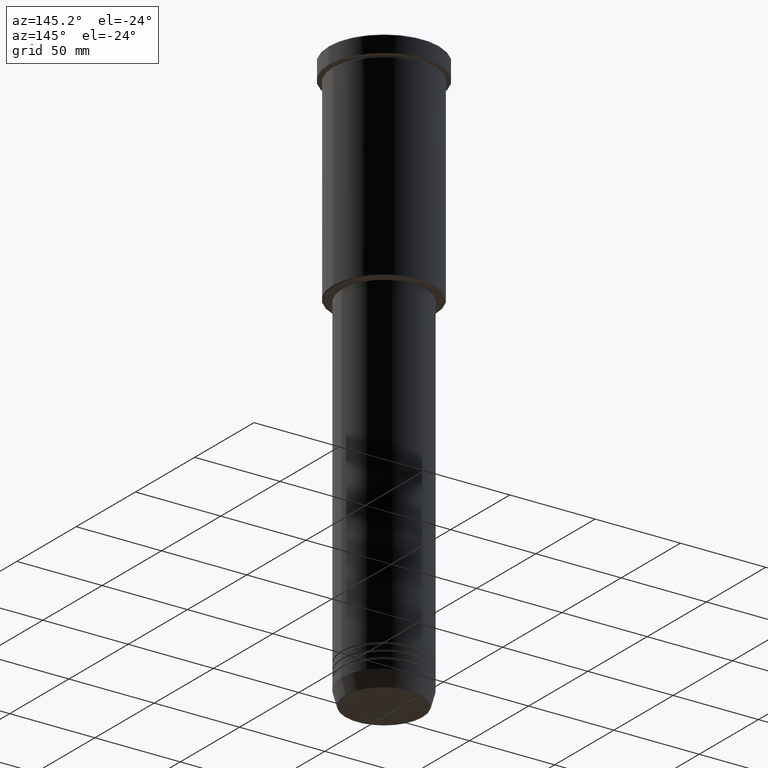
[diagram: clean part render]
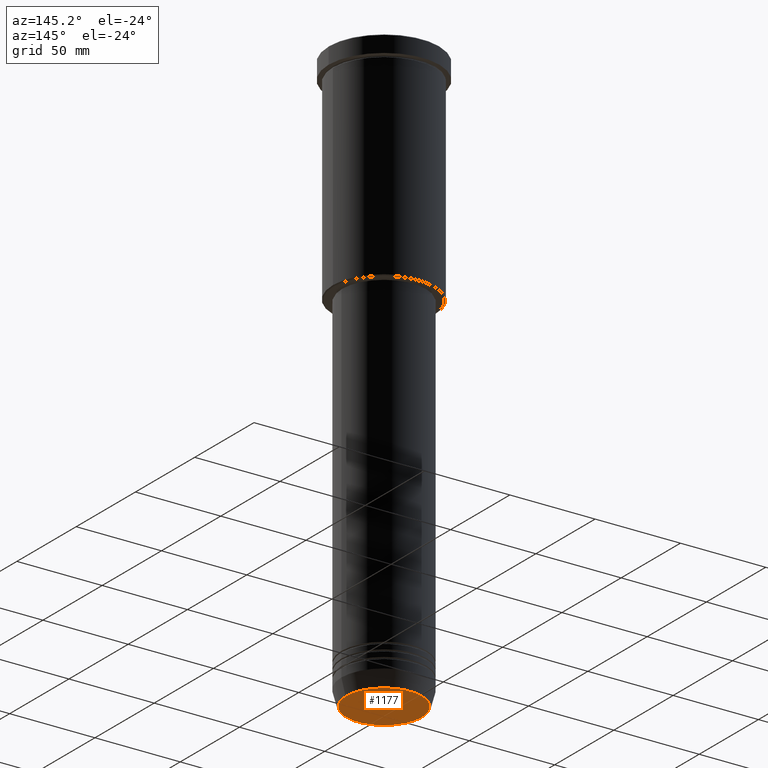
[diagram: same view with one face highlighted and labeled with its STEP entity id]
A machine part, auxiliary view. The second image highlights one B-rep face of the part: STEP entity #1177.
In plain terms, the highlighted planar face has unit normal (0, -0, 1).
Its self-contained STEP definition (entity closure, byte-faithful):
#89 = DIRECTION ( 'NONE',  ( 0.000000000000000000, 0.000000000000000000, -1.000000000000000000 ) ) ;
#104 = VERTEX_POINT ( 'NONE', #1041 ) ;
#149 = AXIS2_PLACEMENT_3D ( 'NONE', #463, #1015, #561 ) ;
#171 = CARTESIAN_POINT ( 'NONE',  ( 0.000000000000000000, 0.000000000000000000, -340.0000000000000000 ) ) ;
#172 = CIRCLE ( 'NONE', #468, 22.20479377413040467 ) ;
#174 = VERTEX_POINT ( 'NONE', #794 ) ;
#233 = ORIENTED_EDGE ( 'NONE', *, *, #456, .T. ) ;
#240 = CIRCLE ( 'NONE', #149, 22.20479377413040467 ) ;
#257 = FACE_OUTER_BOUND ( 'NONE', #660, .T. ) ;
#371 = DIRECTION ( 'NONE',  ( 1.000000000000000000, 0.000000000000000000, 0.000000000000000000 ) ) ;
#383 = ORIENTED_EDGE ( 'NONE', *, *, #591, .T. ) ;
#456 = EDGE_CURVE ( 'NONE', #104, #174, #240, .T. ) ;
#463 = CARTESIAN_POINT ( 'NONE',  ( 0.000000000000000000, 0.000000000000000000, -340.0000000000000000 ) ) ;
#468 = AXIS2_PLACEMENT_3D ( 'NONE', #171, #89, #534 ) ;
#534 = DIRECTION ( 'NONE',  ( 1.000000000000000000, 0.000000000000000000, 0.000000000000000000 ) ) ;
#561 = DIRECTION ( 'NONE',  ( 1.000000000000000000, 0.000000000000000000, 0.000000000000000000 ) ) ;
#591 = EDGE_CURVE ( 'NONE', #174, #104, #172, .T. ) ;
#618 = DIRECTION ( 'NONE',  ( 0.000000000000000000, -0.000000000000000000, 1.000000000000000000 ) ) ;
#634 = CARTESIAN_POINT ( 'NONE',  ( 0.000000000000000000, 0.000000000000000000, -340.0000000000000000 ) ) ;
#660 = EDGE_LOOP ( 'NONE', ( #383, #233 ) ) ;
#794 = CARTESIAN_POINT ( 'NONE',  ( 22.20479377413040467, 0.000000000000000000, -340.0000000000000000 ) ) ;
#1015 = DIRECTION ( 'NONE',  ( 0.000000000000000000, 0.000000000000000000, -1.000000000000000000 ) ) ;
#1041 = CARTESIAN_POINT ( 'NONE',  ( -22.20479377413040467, 2.748875911406054788E-15, -340.0000000000000000 ) ) ;
#1071 = AXIS2_PLACEMENT_3D ( 'NONE', #634, #618, #371 ) ;
#1172 = PLANE ( 'NONE',  #1071 ) ;
#1177 = ADVANCED_FACE ( 'NONE', ( #257 ), #1172, .F. ) ;